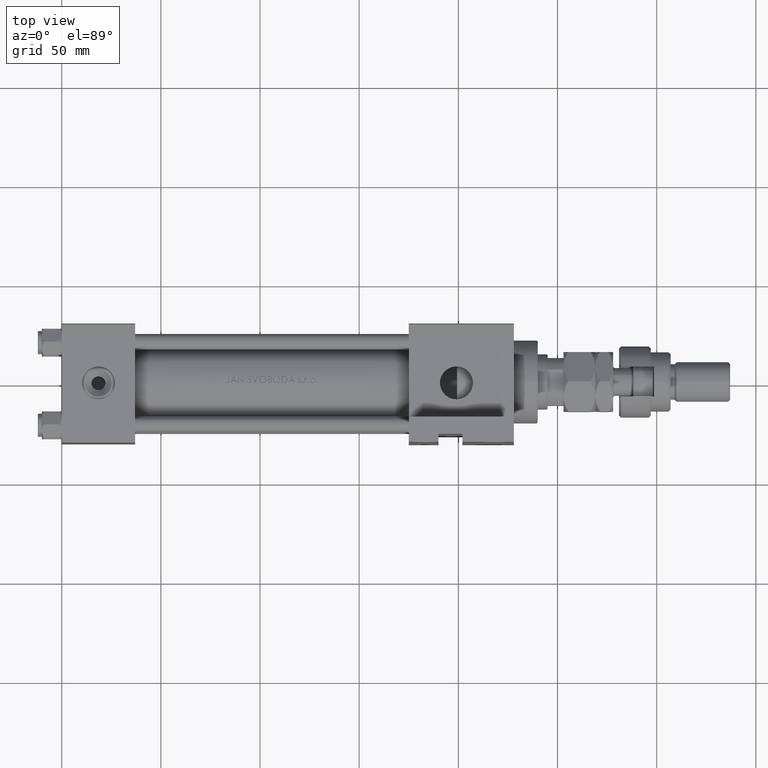
[diagram: clean part render]
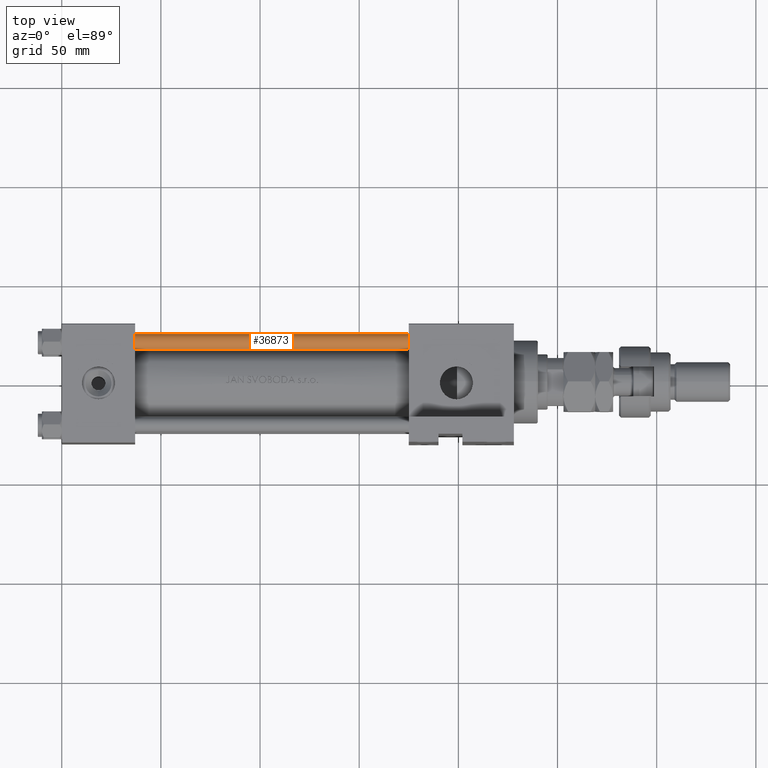
[diagram: same view with one face highlighted and labeled with its STEP entity id]
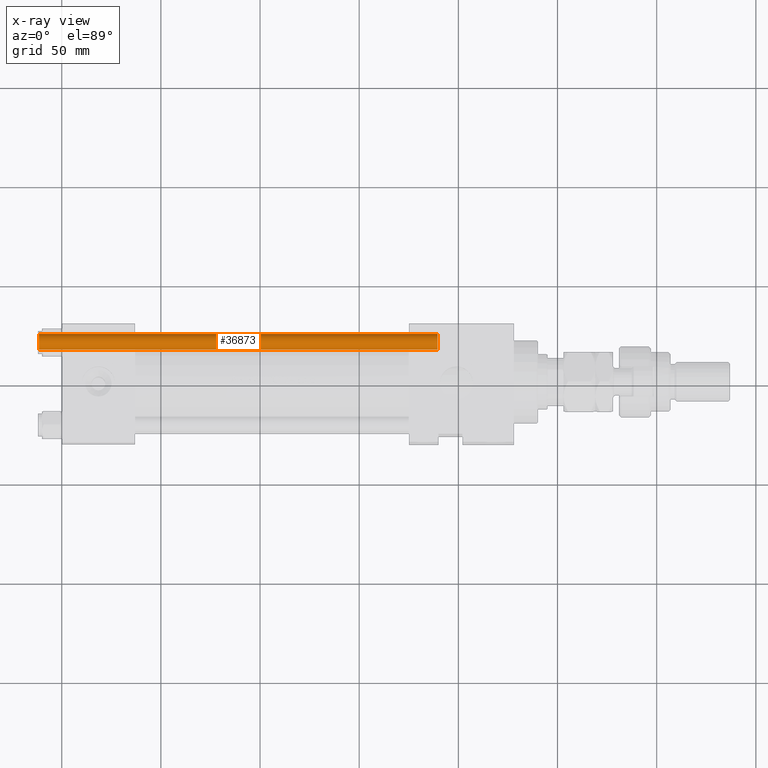
[diagram: x-ray of the same camera — body ghosted, the highlighted face saturated]
A machine part, top view. The second image highlights one B-rep face of the part: STEP entity #36873.
The next image is the same camera in x-ray: the body ghosted, the highlighted face saturated — about 0% of this face is hidden behind the body in this view.
In plain terms, the highlighted cylindrical surface (edge-blend (fillet) strip) has radius 4 mm, axis along (1, -0, 0).
Its self-contained STEP definition (entity closure, byte-faithful):
#2361 = CYLINDRICAL_SURFACE ( 'NONE', #12829, 4.000000000000000000 ) ;
#3691 = CIRCLE ( 'NONE', #40942, 4.000000000000000000 ) ;
#4415 = CARTESIAN_POINT ( 'NONE',  ( -4.000000000000000000, 0.000000000000000000, 202.0000000000000000 ) ) ;
#7336 = DIRECTION ( 'NONE',  ( 1.000000000000000000, 0.000000000000000000, 0.000000000000000000 ) ) ;
#7656 = CARTESIAN_POINT ( 'NONE',  ( 4.000000000000000000, 4.898587196589412829E-16, 0.5000000000000004441 ) ) ;
#9968 = FACE_OUTER_BOUND ( 'NONE', #37722, .T. ) ;
#10784 = DIRECTION ( 'NONE',  ( -1.000000000000000000, 0.000000000000000000, 0.000000000000000000 ) ) ;
#12381 = CIRCLE ( 'NONE', #51314, 4.000000000000000000 ) ;
#12721 = DIRECTION ( 'NONE',  ( -0.000000000000000000, -0.000000000000000000, 1.000000000000000000 ) ) ;
#12829 = AXIS2_PLACEMENT_3D ( 'NONE', #14309, #18906, #10784 ) ;
#14309 = CARTESIAN_POINT ( 'NONE',  ( 0.000000000000000000, 0.000000000000000000, 202.0000000000000000 ) ) ;
#16855 = CARTESIAN_POINT ( 'NONE',  ( 4.000000000000000000, 4.898587196589412829E-16, 202.0000000000000000 ) ) ;
#17361 = VECTOR ( 'NONE', #49678, 1000.000000000000000 ) ;
#18715 = VERTEX_POINT ( 'NONE', #30742 ) ;
#18906 = DIRECTION ( 'NONE',  ( -0.000000000000000000, -0.000000000000000000, -1.000000000000000000 ) ) ;
#21519 = DIRECTION ( 'NONE',  ( 1.000000000000000000, 0.000000000000000000, 0.000000000000000000 ) ) ;
#21592 = EDGE_CURVE ( 'NONE', #48567, #18715, #3691, .T. ) ;
#21749 = VECTOR ( 'NONE', #37251, 1000.000000000000000 ) ;
#22191 = EDGE_CURVE ( 'NONE', #43457, #34944, #12381, .T. ) ;
#23507 = ORIENTED_EDGE ( 'NONE', *, *, #41653, .F. ) ;
#24729 = CARTESIAN_POINT ( 'NONE',  ( 4.000000000000000000, 4.898587196589412829E-16, 201.5000000000000000 ) ) ;
#26856 = CARTESIAN_POINT ( 'NONE',  ( -4.000000000000000000, 0.000000000000000000, 0.5000000000000004441 ) ) ;
#28218 = CARTESIAN_POINT ( 'NONE',  ( 0.000000000000000000, 0.000000000000000000, 0.5000000000000004441 ) ) ;
#29106 = LINE ( 'NONE', #4415, #21749 ) ;
#30742 = CARTESIAN_POINT ( 'NONE',  ( -4.000000000000000000, 0.000000000000000000, 201.5000000000000000 ) ) ;
#33447 = ORIENTED_EDGE ( 'NONE', *, *, #22191, .T. ) ;
#34944 = VERTEX_POINT ( 'NONE', #7656 ) ;
#36873 = ADVANCED_FACE ( 'NONE', ( #9968 ), #2361, .T. ) ;
#37251 = DIRECTION ( 'NONE',  ( -0.000000000000000000, -0.000000000000000000, -1.000000000000000000 ) ) ;
#37722 = EDGE_LOOP ( 'NONE', ( #23507, #43066, #39613, #33447 ) ) ;
#39613 = ORIENTED_EDGE ( 'NONE', *, *, #47192, .T. ) ;
#40942 = AXIS2_PLACEMENT_3D ( 'NONE', #51325, #46752, #21519 ) ;
#41653 = EDGE_CURVE ( 'NONE', #48567, #34944, #45356, .T. ) ;
#43066 = ORIENTED_EDGE ( 'NONE', *, *, #21592, .T. ) ;
#43457 = VERTEX_POINT ( 'NONE', #26856 ) ;
#45356 = LINE ( 'NONE', #16855, #17361 ) ;
#46752 = DIRECTION ( 'NONE',  ( 0.000000000000000000, 0.000000000000000000, -1.000000000000000000 ) ) ;
#47192 = EDGE_CURVE ( 'NONE', #18715, #43457, #29106, .T. ) ;
#48567 = VERTEX_POINT ( 'NONE', #24729 ) ;
#49678 = DIRECTION ( 'NONE',  ( -0.000000000000000000, -0.000000000000000000, -1.000000000000000000 ) ) ;
#51314 = AXIS2_PLACEMENT_3D ( 'NONE', #28218, #12721, #7336 ) ;
#51325 = CARTESIAN_POINT ( 'NONE',  ( 0.000000000000000000, 0.000000000000000000, 201.5000000000000000 ) ) ;